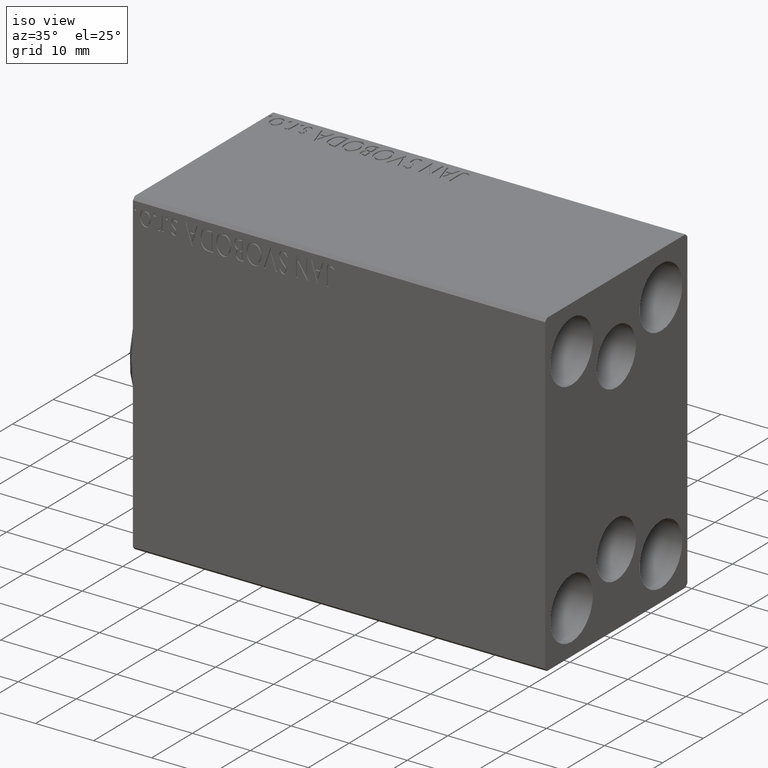
[diagram: clean part render]
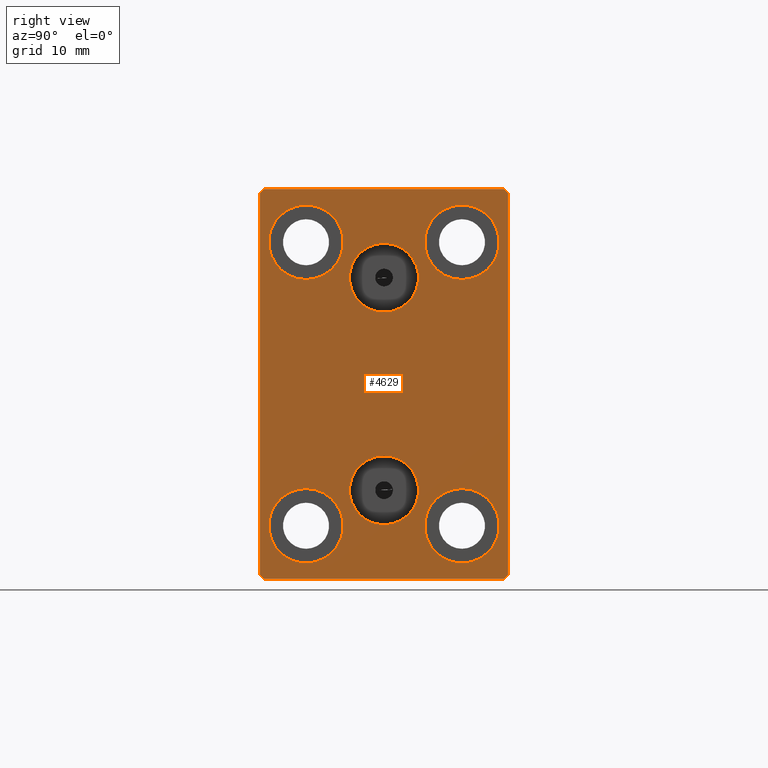
[diagram: tour spotlight — one face highlighted and labeled with its STEP entity id]
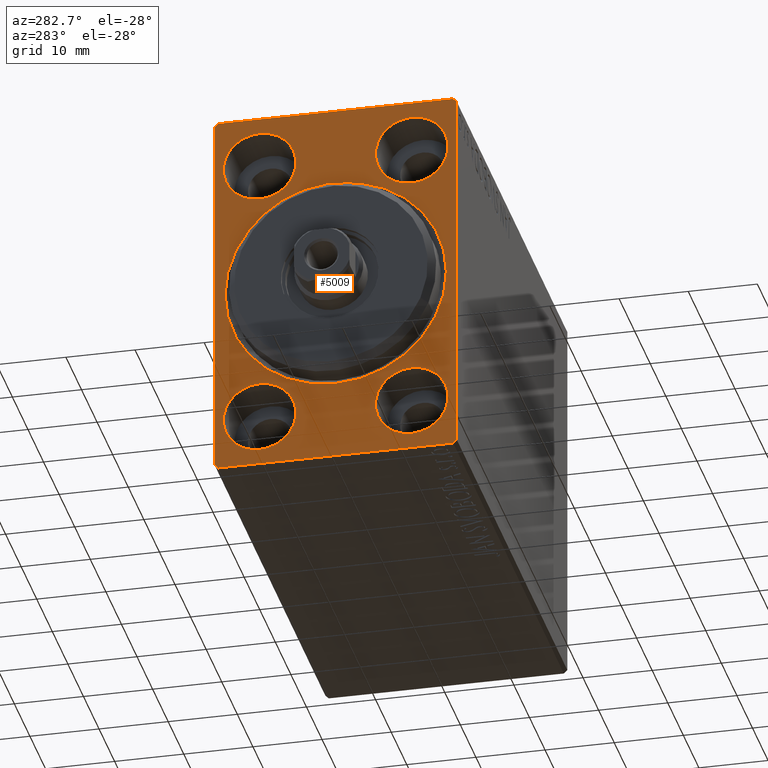
[diagram: tour spotlight — one face highlighted and labeled with its STEP entity id]
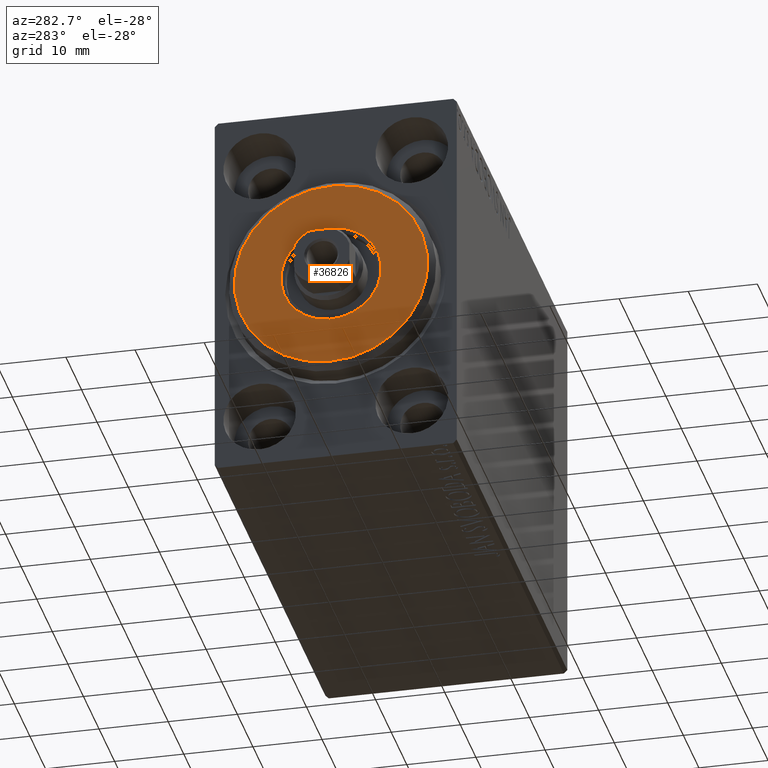
[diagram: tour spotlight — one face highlighted and labeled with its STEP entity id]
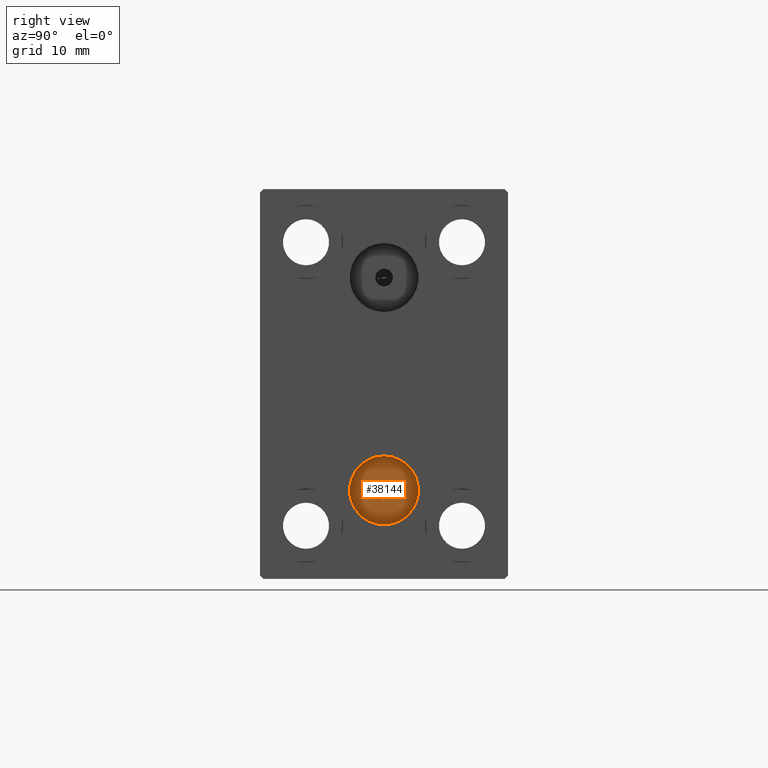
[diagram: tour spotlight — one face highlighted and labeled with its STEP entity id]
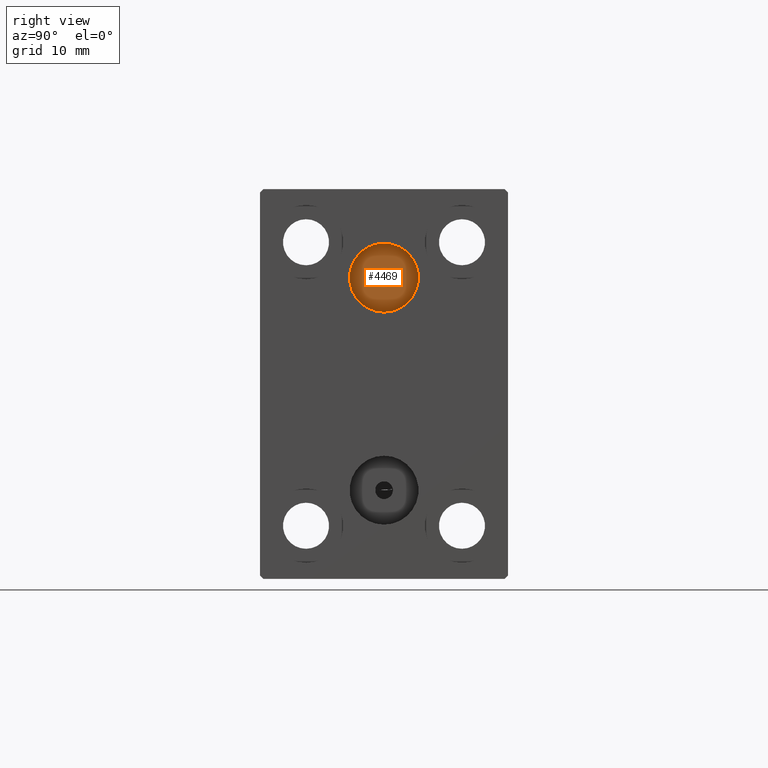
[diagram: tour spotlight — one face highlighted and labeled with its STEP entity id]
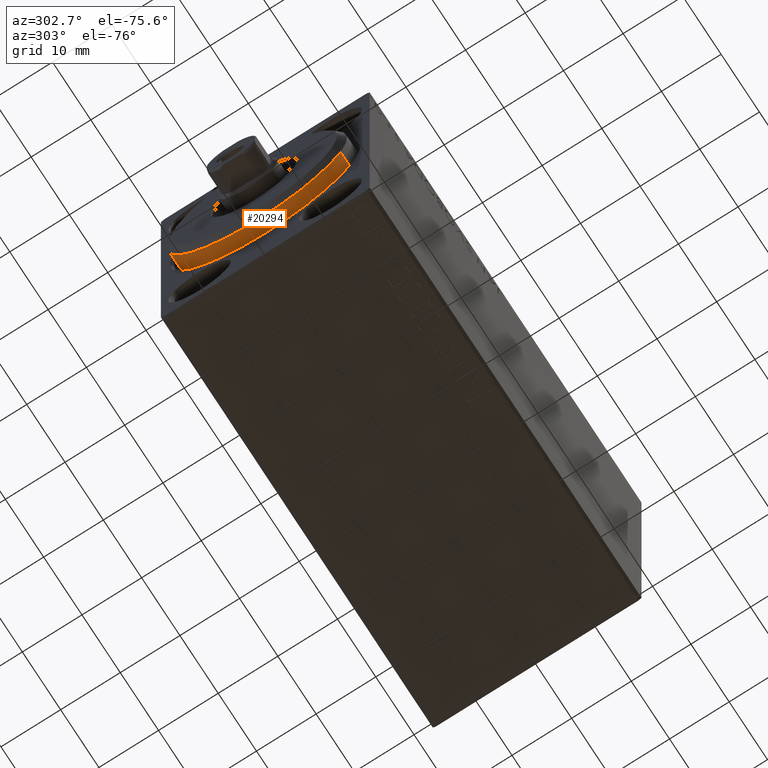
[diagram: tour spotlight — one face highlighted and labeled with its STEP entity id]
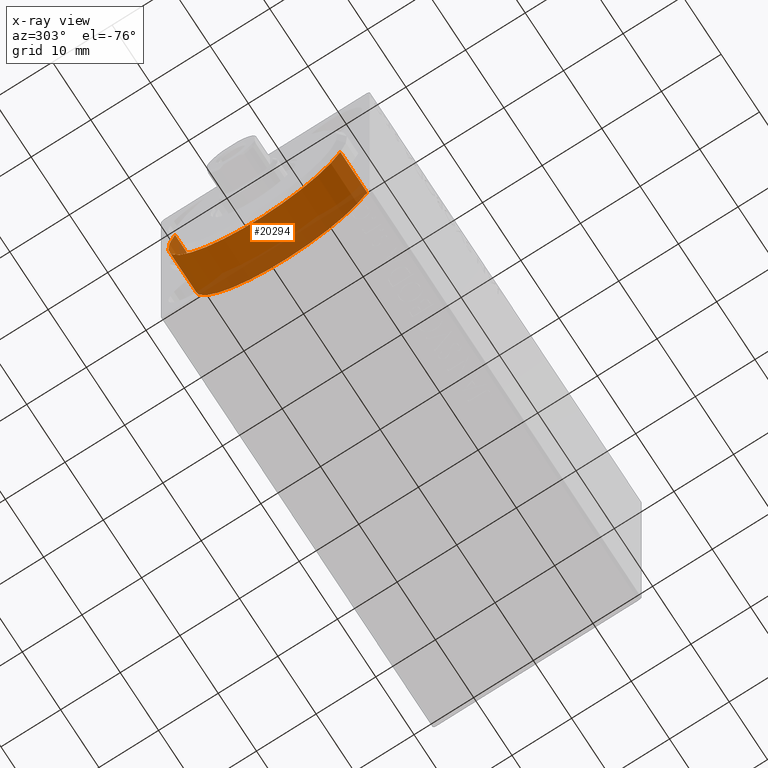
[diagram: x-ray of the same camera — body ghosted, this tour face saturated]
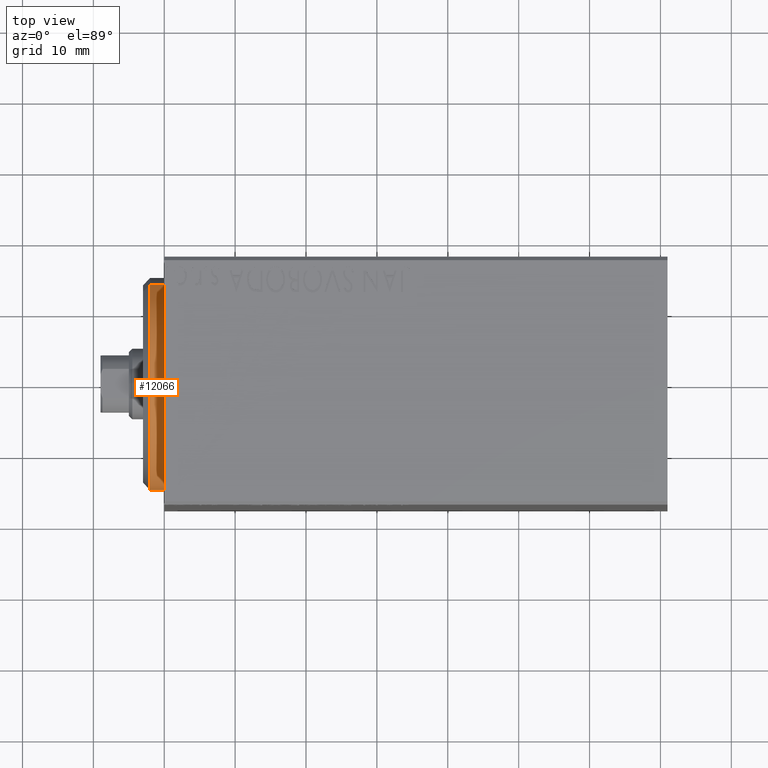
[diagram: tour spotlight — one face highlighted and labeled with its STEP entity id]
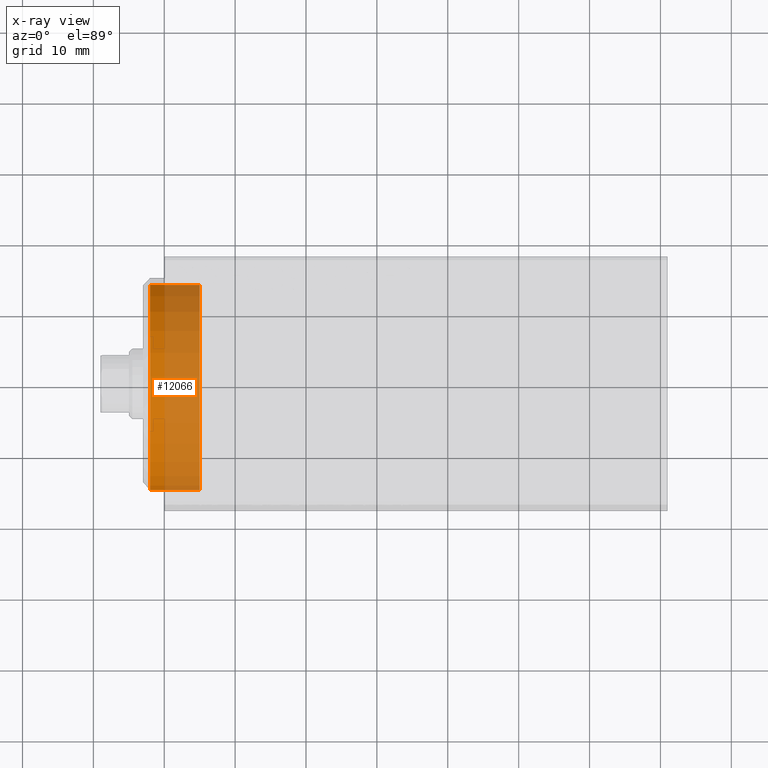
[diagram: x-ray of the same camera — body ghosted, this tour face saturated]
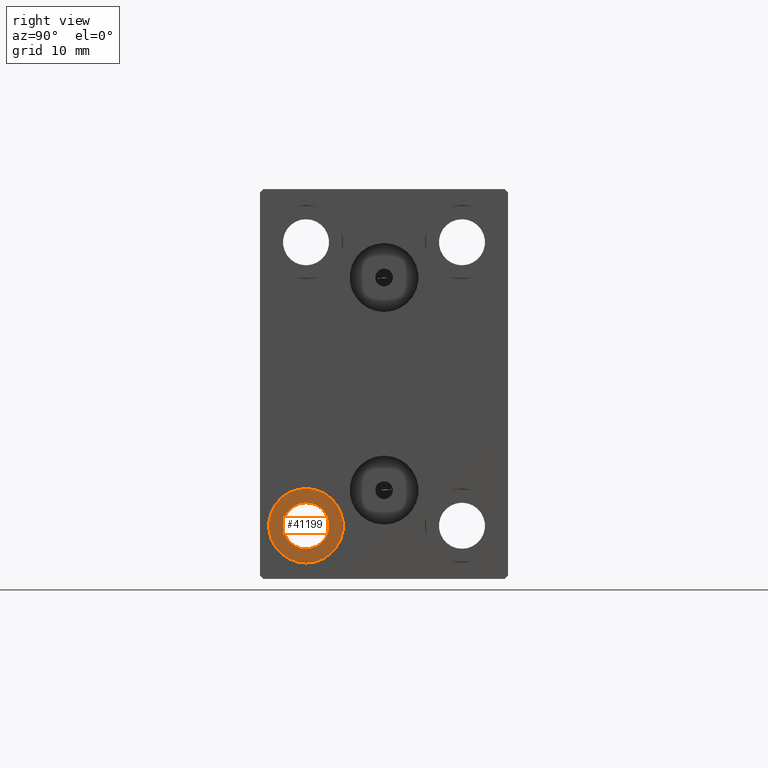
[diagram: tour spotlight — one face highlighted and labeled with its STEP entity id]
A machine part: a face-by-face anatomy tour. The part has 861 B-rep faces; the first image is the clean iso view, then the 8 largest visible faces are spotlighted one at a time (largest first), each with its STEP entity span.

Face 1 — right view, entity #4629. In plain terms, the highlighted planar face has unit normal (1, 0, 0).
Definition (entity closure, byte-faithful):
#42 = AXIS2_PLACEMENT_3D ( 'NONE', #39801, #29599, #9395 ) ;
#138 = DIRECTION ( 'NONE',  ( -0.000000000000000000, 0.7071067811865474617, -0.7071067811865474617 ) ) ;
#177 = EDGE_CURVE ( 'NONE', #5210, #34684, #37292, .T. ) ;
#526 = AXIS2_PLACEMENT_3D ( 'NONE', #13627, #41137, #17600 ) ;
#705 = EDGE_LOOP ( 'NONE', ( #2885, #31915 ) ) ;
#938 = CARTESIAN_POINT ( 'NONE',  ( 71.00000000000000000, 22.25000000000000711, -22.25000000000000711 ) ) ;
#1160 = EDGE_CURVE ( 'NONE', #3328, #18467, #30987, .T. ) ;
#1409 = FACE_BOUND ( 'NONE', #7593, .T. ) ;
#1616 = EDGE_CURVE ( 'NONE', #29288, #26653, #40920, .T. ) ;
#1697 = DIRECTION ( 'NONE',  ( 0.000000000000000000, 0.000000000000000000, 1.000000000000000000 ) ) ;
#2392 = CARTESIAN_POINT ( 'NONE',  ( 71.00000000000000000, -1.836970198721029589E-15, 15.00000000000000000 ) ) ;
#2570 = CARTESIAN_POINT ( 'NONE',  ( 71.00000000000000000, -11.00000000000000355, 14.75000000000000000 ) ) ;
#2861 = VERTEX_POINT ( 'NONE', #11549 ) ;
#2885 = ORIENTED_EDGE ( 'NONE', *, *, #21639, .T. ) ;
#3180 = EDGE_CURVE ( 'NONE', #10804, #2861, #29637, .T. ) ;
#3307 = ORIENTED_EDGE ( 'NONE', *, *, #9765, .T. ) ;
#3328 = VERTEX_POINT ( 'NONE', #16665 ) ;
#3373 = EDGE_LOOP ( 'NONE', ( #26072, #36520 ) ) ;
#3464 = CARTESIAN_POINT ( 'NONE',  ( 71.00000000000000000, -11.00000000000000355, 25.25000000000000000 ) ) ;
#3550 = AXIS2_PLACEMENT_3D ( 'NONE', #13694, #20355, #36778 ) ;
#3601 = DIRECTION ( 'NONE',  ( 0.000000000000000000, 0.000000000000000000, 1.000000000000000000 ) ) ;
#4525 = FACE_BOUND ( 'NONE', #3373, .T. ) ;
#4629 = ADVANCED_FACE ( 'NONE', ( #1409, #4525, #20962, #24940, #27631, #7850, #14292 ), #42022, .T. ) ;
#4910 = EDGE_CURVE ( 'NONE', #38464, #39010, #35345, .T. ) ;
#5210 = VERTEX_POINT ( 'NONE', #19547 ) ;
#5408 = CARTESIAN_POINT ( 'NONE',  ( 71.00000000000000000, -1.241791854335416311E-15, 19.85999999999999943 ) ) ;
#5459 = DIRECTION ( 'NONE',  ( 1.000000000000000000, 0.000000000000000000, -0.000000000000000000 ) ) ;
#5495 = VERTEX_POINT ( 'NONE', #20756 ) ;
#5526 = AXIS2_PLACEMENT_3D ( 'NONE', #16296, #36510, #29627 ) ;
#6348 = AXIS2_PLACEMENT_3D ( 'NONE', #13199, #36072, #12319 ) ;
#6525 = VECTOR ( 'NONE', #41628, 1000.000000000000000 ) ;
#6893 = VERTEX_POINT ( 'NONE', #42774 ) ;
#7155 = LINE ( 'NONE', #938, #32902 ) ;
#7164 = VERTEX_POINT ( 'NONE', #9430 ) ;
#7498 = CARTESIAN_POINT ( 'NONE',  ( 71.00000000000000000, -22.25000000000000711, 22.25000000000000711 ) ) ;
#7593 = EDGE_LOOP ( 'NONE', ( #43373, #26839 ) ) ;
#7674 = DIRECTION ( 'NONE',  ( 0.000000000000000000, 0.000000000000000000, 1.000000000000000000 ) ) ;
#7850 = FACE_BOUND ( 'NONE', #33791, .T. ) ;
#7896 = LINE ( 'NONE', #24539, #6525 ) ;
#8606 = DIRECTION ( 'NONE',  ( 0.000000000000000000, 1.000000000000000000, 0.000000000000000000 ) ) ;
#8864 = EDGE_LOOP ( 'NONE', ( #23687, #28060, #18930, #34013, #3307, #19113, #11335, #34658 ) ) ;
#8967 = ORIENTED_EDGE ( 'NONE', *, *, #39734, .T. ) ;
#9395 = DIRECTION ( 'NONE',  ( 0.000000000000000000, 0.000000000000000000, 1.000000000000000000 ) ) ;
#9430 = CARTESIAN_POINT ( 'NONE',  ( 71.00000000000000000, 17.50000000000000711, -27.00000000000000355 ) ) ;
#9520 = VECTOR ( 'NONE', #138, 1000.000000000000114 ) ;
#9765 = EDGE_CURVE ( 'NONE', #5495, #25914, #15912, .T. ) ;
#9989 = CARTESIAN_POINT ( 'NONE',  ( 71.00000000000000000, 22.25000000000000711, 22.25000000000000711 ) ) ;
#10392 = CARTESIAN_POINT ( 'NONE',  ( 71.00000000000000000, -11.00000000000000355, -20.00000000000000000 ) ) ;
#10804 = VERTEX_POINT ( 'NONE', #13481 ) ;
#10805 = CARTESIAN_POINT ( 'NONE',  ( 71.00000000000000000, -17.50000000000000000, 27.49999999999999645 ) ) ;
#11002 = AXIS2_PLACEMENT_3D ( 'NONE', #20346, #40094, #43642 ) ;
#11335 = ORIENTED_EDGE ( 'NONE', *, *, #40133, .T. ) ;
#11549 = CARTESIAN_POINT ( 'NONE',  ( 71.00000000000000000, 11.00000000000000355, 14.75000000000000000 ) ) ;
#11677 = LINE ( 'NONE', #7498, #39139 ) ;
#11754 = AXIS2_PLACEMENT_3D ( 'NONE', #2392, #33465, #16585 ) ;
#11814 = AXIS2_PLACEMENT_3D ( 'NONE', #10392, #17714, #23937 ) ;
#12238 = EDGE_CURVE ( 'NONE', #29623, #6893, #31235, .T. ) ;
#12319 = DIRECTION ( 'NONE',  ( 0.000000000000000000, 0.000000000000000000, 1.000000000000000000 ) ) ;
#12421 = CARTESIAN_POINT ( 'NONE',  ( 71.00000000000000000, -17.00000000000001421, 27.49999999999999645 ) ) ;
#12431 = VERTEX_POINT ( 'NONE', #26306 ) ;
#12436 = EDGE_CURVE ( 'NONE', #18467, #3328, #27621, .T. ) ;
#13199 = CARTESIAN_POINT ( 'NONE',  ( 71.00000000000000000, -11.00000000000000355, -20.00000000000000000 ) ) ;
#13475 = ORIENTED_EDGE ( 'NONE', *, *, #40322, .T. ) ;
#13481 = CARTESIAN_POINT ( 'NONE',  ( 71.00000000000000000, 11.00000000000000355, 25.25000000000000000 ) ) ;
#13627 = CARTESIAN_POINT ( 'NONE',  ( 71.00000000000000000, -1.836970198721029589E-15, 15.00000000000000000 ) ) ;
#13694 = CARTESIAN_POINT ( 'NONE',  ( 71.00000000000000000, 11.00000000000000355, 20.00000000000000000 ) ) ;
#13732 = CARTESIAN_POINT ( 'NONE',  ( 71.00000000000000000, 17.50000000000000711, -27.50000000000000355 ) ) ;
#14292 = FACE_OUTER_BOUND ( 'NONE', #8864, .T. ) ;
#14507 = DIRECTION ( 'NONE',  ( 1.000000000000000000, 0.000000000000000000, 0.000000000000000000 ) ) ;
#14596 = EDGE_CURVE ( 'NONE', #22617, #12431, #34776, .T. ) ;
#14765 = AXIS2_PLACEMENT_3D ( 'NONE', #34010, #37336, #3601 ) ;
#15218 = EDGE_CURVE ( 'NONE', #39010, #38464, #41860, .T. ) ;
#15863 = CARTESIAN_POINT ( 'NONE',  ( 71.00000000000000000, 11.00000000000000355, -14.75000000000000000 ) ) ;
#15912 = LINE ( 'NONE', #35479, #36057 ) ;
#16296 = CARTESIAN_POINT ( 'NONE',  ( 71.00000000000000000, 11.00000000000000355, 20.00000000000000000 ) ) ;
#16352 = EDGE_LOOP ( 'NONE', ( #13475, #36636 ) ) ;
#16585 = DIRECTION ( 'NONE',  ( 0.000000000000000000, 0.000000000000000000, -1.000000000000000000 ) ) ;
#16665 = CARTESIAN_POINT ( 'NONE',  ( 71.00000000000000000, -11.00000000000000355, -25.25000000000000000 ) ) ;
#17140 = DIRECTION ( 'NONE',  ( -0.000000000000000000, 0.7071067811865474617, 0.7071067811865474617 ) ) ;
#17600 = DIRECTION ( 'NONE',  ( 0.000000000000000000, 0.000000000000000000, -1.000000000000000000 ) ) ;
#17683 = DIRECTION ( 'NONE',  ( 0.000000000000000000, 0.000000000000000000, -1.000000000000000000 ) ) ;
#17714 = DIRECTION ( 'NONE',  ( -1.000000000000000000, -0.000000000000000000, -0.000000000000000000 ) ) ;
#18048 = ORIENTED_EDGE ( 'NONE', *, *, #1160, .T. ) ;
#18274 = CARTESIAN_POINT ( 'NONE',  ( 71.00000000000000000, 0.000000000000000000, 0.000000000000000000 ) ) ;
#18467 = VERTEX_POINT ( 'NONE', #21973 ) ;
#18930 = ORIENTED_EDGE ( 'NONE', *, *, #12238, .T. ) ;
#19113 = ORIENTED_EDGE ( 'NONE', *, *, #36545, .T. ) ;
#19413 = VERTEX_POINT ( 'NONE', #12421 ) ;
#19547 = CARTESIAN_POINT ( 'NONE',  ( 71.00000000000000000, 17.50000000000000000, 27.00000000000001776 ) ) ;
#20346 = CARTESIAN_POINT ( 'NONE',  ( 71.00000000000000000, 11.00000000000000355, -20.00000000000000000 ) ) ;
#20355 = DIRECTION ( 'NONE',  ( -1.000000000000000000, -0.000000000000000000, -0.000000000000000000 ) ) ;
#20756 = CARTESIAN_POINT ( 'NONE',  ( 71.00000000000000000, -17.00000000000000000, -27.50000000000000355 ) ) ;
#20962 = FACE_BOUND ( 'NONE', #16352, .T. ) ;
#21033 = DIRECTION ( 'NONE',  ( 0.000000000000000000, -0.7071067811865474617, -0.7071067811865474617 ) ) ;
#21639 = EDGE_CURVE ( 'NONE', #2861, #10804, #30488, .T. ) ;
#21973 = CARTESIAN_POINT ( 'NONE',  ( 71.00000000000000000, -11.00000000000000355, -14.75000000000000000 ) ) ;
#22225 = CIRCLE ( 'NONE', #42060, 5.250000000000000888 ) ;
#22617 = VERTEX_POINT ( 'NONE', #15863 ) ;
#23530 = DIRECTION ( 'NONE',  ( -0.000000000000000000, -0.7071067811865474617, 0.7071067811865474617 ) ) ;
#23687 = ORIENTED_EDGE ( 'NONE', *, *, #25692, .T. ) ;
#23937 = DIRECTION ( 'NONE',  ( 0.000000000000000000, 0.000000000000000000, 1.000000000000000000 ) ) ;
#24539 = CARTESIAN_POINT ( 'NONE',  ( 71.00000000000000000, 17.50000000000000000, 27.50000000000000355 ) ) ;
#24717 = DIRECTION ( 'NONE',  ( 0.000000000000000000, 0.000000000000000000, -1.000000000000000000 ) ) ;
#24940 = FACE_BOUND ( 'NONE', #34345, .T. ) ;
#25607 = CARTESIAN_POINT ( 'NONE',  ( 71.00000000000000000, -1.836970198721029589E-15, 10.14000000000000057 ) ) ;
#25692 = EDGE_CURVE ( 'NONE', #34684, #19413, #7896, .T. ) ;
#25914 = VERTEX_POINT ( 'NONE', #43289 ) ;
#26072 = ORIENTED_EDGE ( 'NONE', *, *, #4910, .F. ) ;
#26306 = CARTESIAN_POINT ( 'NONE',  ( 71.00000000000000000, 11.00000000000000355, -25.25000000000000000 ) ) ;
#26427 = VERTEX_POINT ( 'NONE', #2570 ) ;
#26653 = VERTEX_POINT ( 'NONE', #5408 ) ;
#26839 = ORIENTED_EDGE ( 'NONE', *, *, #42485, .F. ) ;
#27621 = CIRCLE ( 'NONE', #6348, 5.250000000000000888 ) ;
#27631 = FACE_BOUND ( 'NONE', #705, .T. ) ;
#27657 = CARTESIAN_POINT ( 'NONE',  ( 71.00000000000000000, -22.25000000000000355, -22.25000000000000355 ) ) ;
#27742 = CARTESIAN_POINT ( 'NONE',  ( 71.00000000000000000, 17.00000000000001421, 27.50000000000000355 ) ) ;
#28060 = ORIENTED_EDGE ( 'NONE', *, *, #31727, .T. ) ;
#28411 = AXIS2_PLACEMENT_3D ( 'NONE', #42952, #5459, #1697 ) ;
#29288 = VERTEX_POINT ( 'NONE', #25607 ) ;
#29599 = DIRECTION ( 'NONE',  ( -1.000000000000000000, -0.000000000000000000, -0.000000000000000000 ) ) ;
#29623 = VERTEX_POINT ( 'NONE', #36381 ) ;
#29627 = DIRECTION ( 'NONE',  ( 0.000000000000000000, 0.000000000000000000, 1.000000000000000000 ) ) ;
#29637 = CIRCLE ( 'NONE', #5526, 5.250000000000000888 ) ;
#29916 = ORIENTED_EDGE ( 'NONE', *, *, #35687, .T. ) ;
#30092 = DIRECTION ( 'NONE',  ( 0.000000000000000000, 0.000000000000000000, 1.000000000000000000 ) ) ;
#30488 = CIRCLE ( 'NONE', #3550, 5.250000000000000888 ) ;
#30914 = VERTEX_POINT ( 'NONE', #3464 ) ;
#30915 = CIRCLE ( 'NONE', #11754, 4.859999999999999432 ) ;
#30987 = CIRCLE ( 'NONE', #11814, 5.250000000000000888 ) ;
#31235 = LINE ( 'NONE', #10805, #31851 ) ;
#31473 = VECTOR ( 'NONE', #23530, 1000.000000000000114 ) ;
#31727 = EDGE_CURVE ( 'NONE', #19413, #29623, #11677, .T. ) ;
#31851 = VECTOR ( 'NONE', #17683, 1000.000000000000000 ) ;
#31915 = ORIENTED_EDGE ( 'NONE', *, *, #3180, .T. ) ;
#32902 = VECTOR ( 'NONE', #17140, 1000.000000000000114 ) ;
#32962 = CIRCLE ( 'NONE', #42157, 5.250000000000000888 ) ;
#32997 = CIRCLE ( 'NONE', #11002, 5.250000000000000888 ) ;
#33465 = DIRECTION ( 'NONE',  ( 1.000000000000000000, 0.000000000000000000, 0.000000000000000000 ) ) ;
#33791 = EDGE_LOOP ( 'NONE', ( #18048, #42740 ) ) ;
#34010 = CARTESIAN_POINT ( 'NONE',  ( 71.00000000000000000, -1.734723475976807094E-15, -15.00000000000000000 ) ) ;
#34013 = ORIENTED_EDGE ( 'NONE', *, *, #38189, .T. ) ;
#34345 = EDGE_LOOP ( 'NONE', ( #29916, #8967 ) ) ;
#34626 = AXIS2_PLACEMENT_3D ( 'NONE', #18274, #14507, #24717 ) ;
#34658 = ORIENTED_EDGE ( 'NONE', *, *, #177, .T. ) ;
#34684 = VERTEX_POINT ( 'NONE', #27742 ) ;
#34776 = CIRCLE ( 'NONE', #42, 5.250000000000000888 ) ;
#35182 = DIRECTION ( 'NONE',  ( -1.000000000000000000, -0.000000000000000000, -0.000000000000000000 ) ) ;
#35345 = CIRCLE ( 'NONE', #14765, 4.859999999999999432 ) ;
#35479 = CARTESIAN_POINT ( 'NONE',  ( 71.00000000000000000, -17.50000000000000000, -27.50000000000000355 ) ) ;
#35687 = EDGE_CURVE ( 'NONE', #26427, #30914, #22225, .T. ) ;
#36057 = VECTOR ( 'NONE', #8606, 1000.000000000000000 ) ;
#36072 = DIRECTION ( 'NONE',  ( -1.000000000000000000, -0.000000000000000000, -0.000000000000000000 ) ) ;
#36381 = CARTESIAN_POINT ( 'NONE',  ( 71.00000000000000000, -17.50000000000000000, 27.00000000000001066 ) ) ;
#36510 = DIRECTION ( 'NONE',  ( -1.000000000000000000, -0.000000000000000000, -0.000000000000000000 ) ) ;
#36520 = ORIENTED_EDGE ( 'NONE', *, *, #15218, .F. ) ;
#36523 = DIRECTION ( 'NONE',  ( -1.000000000000000000, -0.000000000000000000, -0.000000000000000000 ) ) ;
#36545 = EDGE_CURVE ( 'NONE', #25914, #7164, #7155, .T. ) ;
#36636 = ORIENTED_EDGE ( 'NONE', *, *, #14596, .T. ) ;
#36778 = DIRECTION ( 'NONE',  ( 0.000000000000000000, 0.000000000000000000, 1.000000000000000000 ) ) ;
#37292 = LINE ( 'NONE', #9989, #31473 ) ;
#37336 = DIRECTION ( 'NONE',  ( 1.000000000000000000, 0.000000000000000000, -0.000000000000000000 ) ) ;
#37524 = CARTESIAN_POINT ( 'NONE',  ( 71.00000000000000000, -1.139545131591193817E-15, -10.14000000000000057 ) ) ;
#38189 = EDGE_CURVE ( 'NONE', #6893, #5495, #40749, .T. ) ;
#38464 = VERTEX_POINT ( 'NONE', #38662 ) ;
#38662 = CARTESIAN_POINT ( 'NONE',  ( 71.00000000000000000, -1.734723475976807094E-15, -19.85999999999999943 ) ) ;
#39010 = VERTEX_POINT ( 'NONE', #37524 ) ;
#39139 = VECTOR ( 'NONE', #21033, 1000.000000000000114 ) ;
#39734 = EDGE_CURVE ( 'NONE', #30914, #26427, #32962, .T. ) ;
#39801 = CARTESIAN_POINT ( 'NONE',  ( 71.00000000000000000, 11.00000000000000355, -20.00000000000000000 ) ) ;
#40027 = VECTOR ( 'NONE', #40150, 1000.000000000000000 ) ;
#40094 = DIRECTION ( 'NONE',  ( -1.000000000000000000, -0.000000000000000000, -0.000000000000000000 ) ) ;
#40133 = EDGE_CURVE ( 'NONE', #7164, #5210, #41030, .T. ) ;
#40150 = DIRECTION ( 'NONE',  ( 0.000000000000000000, -1.261617073437677752E-16, 1.000000000000000000 ) ) ;
#40322 = EDGE_CURVE ( 'NONE', #12431, #22617, #32997, .T. ) ;
#40749 = LINE ( 'NONE', #27657, #9520 ) ;
#40920 = CIRCLE ( 'NONE', #526, 4.859999999999999432 ) ;
#41030 = LINE ( 'NONE', #13732, #40027 ) ;
#41137 = DIRECTION ( 'NONE',  ( 1.000000000000000000, 0.000000000000000000, 0.000000000000000000 ) ) ;
#41619 = CARTESIAN_POINT ( 'NONE',  ( 71.00000000000000000, -11.00000000000000355, 20.00000000000000000 ) ) ;
#41628 = DIRECTION ( 'NONE',  ( 0.000000000000000000, -1.000000000000000000, -1.982541115402065110E-16 ) ) ;
#41860 = CIRCLE ( 'NONE', #28411, 4.859999999999999432 ) ;
#42022 = PLANE ( 'NONE',  #34626 ) ;
#42060 = AXIS2_PLACEMENT_3D ( 'NONE', #42947, #36523, #30092 ) ;
#42157 = AXIS2_PLACEMENT_3D ( 'NONE', #41619, #35182, #7674 ) ;
#42485 = EDGE_CURVE ( 'NONE', #26653, #29288, #30915, .T. ) ;
#42740 = ORIENTED_EDGE ( 'NONE', *, *, #12436, .T. ) ;
#42774 = CARTESIAN_POINT ( 'NONE',  ( 71.00000000000000000, -17.50000000000000000, -27.00000000000000355 ) ) ;
#42947 = CARTESIAN_POINT ( 'NONE',  ( 71.00000000000000000, -11.00000000000000355, 20.00000000000000000 ) ) ;
#42952 = CARTESIAN_POINT ( 'NONE',  ( 71.00000000000000000, -1.734723475976807094E-15, -15.00000000000000000 ) ) ;
#43289 = CARTESIAN_POINT ( 'NONE',  ( 71.00000000000000000, 17.00000000000000711, -27.50000000000000355 ) ) ;
#43373 = ORIENTED_EDGE ( 'NONE', *, *, #1616, .F. ) ;
#43642 = DIRECTION ( 'NONE',  ( 0.000000000000000000, 0.000000000000000000, 1.000000000000000000 ) ) ;

Face 2 — auxiliary view, entity #5009. In plain terms, the highlighted planar face has unit normal (1, 0, 0).
Definition (entity closure, byte-faithful):
#422 = ORIENTED_EDGE ( 'NONE', *, *, #29012, .F. ) ;
#592 = CIRCLE ( 'NONE', #43118, 5.250000000000000888 ) ;
#708 = DIRECTION ( 'NONE',  ( 1.000000000000000000, 0.000000000000000000, 0.000000000000000000 ) ) ;
#933 = DIRECTION ( 'NONE',  ( 0.000000000000000000, 0.000000000000000000, -1.000000000000000000 ) ) ;
#962 = LINE ( 'NONE', #14490, #21781 ) ;
#1058 = EDGE_CURVE ( 'NONE', #20521, #42457, #27443, .T. ) ;
#1103 = CARTESIAN_POINT ( 'NONE',  ( 0.000000000000000000, -11.00000000000000355, 20.00000000000000000 ) ) ;
#1165 = CARTESIAN_POINT ( 'NONE',  ( 0.000000000000000000, 11.00000000000000355, -25.25000000000000000 ) ) ;
#1765 = EDGE_CURVE ( 'NONE', #32847, #28816, #962, .T. ) ;
#2000 = ORIENTED_EDGE ( 'NONE', *, *, #26882, .F. ) ;
#2070 = CARTESIAN_POINT ( 'NONE',  ( 0.000000000000000000, 17.00000000000001421, 27.50000000000000355 ) ) ;
#2166 = LINE ( 'NONE', #42988, #9154 ) ;
#2498 = VERTEX_POINT ( 'NONE', #33828 ) ;
#3565 = EDGE_CURVE ( 'NONE', #31435, #28816, #10083, .T. ) ;
#3699 = VERTEX_POINT ( 'NONE', #18055 ) ;
#3996 = DIRECTION ( 'NONE',  ( -0.000000000000000000, -0.7071067811865474617, 0.7071067811865474617 ) ) ;
#4381 = CARTESIAN_POINT ( 'NONE',  ( 0.000000000000000000, 11.00000000000000355, -20.00000000000000000 ) ) ;
#4633 = EDGE_CURVE ( 'NONE', #42457, #20521, #592, .T. ) ;
#4873 = ORIENTED_EDGE ( 'NONE', *, *, #32926, .T. ) ;
#4890 = AXIS2_PLACEMENT_3D ( 'NONE', #28714, #8289, #5181 ) ;
#5009 = ADVANCED_FACE ( 'NONE', ( #24668, #7371, #41540, #31117, #31343, #34451 ), #37998, .F. ) ;
#5181 = DIRECTION ( 'NONE',  ( 0.000000000000000000, 0.000000000000000000, -1.000000000000000000 ) ) ;
#5320 = DIRECTION ( 'NONE',  ( 0.000000000000000000, 1.000000000000000000, 0.000000000000000000 ) ) ;
#5755 = AXIS2_PLACEMENT_3D ( 'NONE', #37429, #27881, #41192 ) ;
#5993 = VERTEX_POINT ( 'NONE', #32873 ) ;
#6164 = EDGE_CURVE ( 'NONE', #32847, #21879, #31076, .T. ) ;
#6548 = CARTESIAN_POINT ( 'NONE',  ( 0.000000000000000000, -17.50000000000000000, -27.00000000000000355 ) ) ;
#6843 = EDGE_CURVE ( 'NONE', #18450, #2498, #2166, .T. ) ;
#6929 = VERTEX_POINT ( 'NONE', #10144 ) ;
#7271 = EDGE_CURVE ( 'NONE', #23758, #2498, #23634, .T. ) ;
#7371 = FACE_BOUND ( 'NONE', #7696, .T. ) ;
#7419 = ORIENTED_EDGE ( 'NONE', *, *, #11268, .T. ) ;
#7590 = CARTESIAN_POINT ( 'NONE',  ( 0.000000000000000000, 0.000000000000000000, 0.000000000000000000 ) ) ;
#7696 = EDGE_LOOP ( 'NONE', ( #17184, #35841 ) ) ;
#7917 = CIRCLE ( 'NONE', #5755, 5.250000000000000888 ) ;
#8277 = AXIS2_PLACEMENT_3D ( 'NONE', #29293, #42381, #25518 ) ;
#8289 = DIRECTION ( 'NONE',  ( 1.000000000000000000, 0.000000000000000000, 0.000000000000000000 ) ) ;
#8464 = CIRCLE ( 'NONE', #19821, 5.250000000000000888 ) ;
#8819 = EDGE_CURVE ( 'NONE', #5993, #16412, #26921, .T. ) ;
#9154 = VECTOR ( 'NONE', #36563, 1000.000000000000114 ) ;
#9922 = CIRCLE ( 'NONE', #12034, 5.250000000000000888 ) ;
#10083 = LINE ( 'NONE', #16954, #33890 ) ;
#10144 = CARTESIAN_POINT ( 'NONE',  ( 0.000000000000000000, 0.000000000000000000, 16.00000000000000000 ) ) ;
#10447 = VERTEX_POINT ( 'NONE', #41053 ) ;
#10590 = DIRECTION ( 'NONE',  ( -1.000000000000000000, 0.000000000000000000, 0.000000000000000000 ) ) ;
#11268 = EDGE_CURVE ( 'NONE', #6929, #10447, #24029, .T. ) ;
#11695 = CARTESIAN_POINT ( 'NONE',  ( 0.000000000000000000, 17.00000000000001421, 27.50000000000000355 ) ) ;
#11912 = LINE ( 'NONE', #28369, #29882 ) ;
#12034 = AXIS2_PLACEMENT_3D ( 'NONE', #4381, #10590, #28125 ) ;
#12885 = CIRCLE ( 'NONE', #18558, 5.250000000000000888 ) ;
#12934 = EDGE_CURVE ( 'NONE', #29141, #27170, #8464, .T. ) ;
#12944 = CARTESIAN_POINT ( 'NONE',  ( 0.000000000000000000, 0.000000000000000000, 0.000000000000000000 ) ) ;
#12961 = ORIENTED_EDGE ( 'NONE', *, *, #6843, .T. ) ;
#13181 = EDGE_CURVE ( 'NONE', #16412, #5993, #9922, .T. ) ;
#13417 = CARTESIAN_POINT ( 'NONE',  ( 0.000000000000000000, 17.50000000000000000, 27.50000000000000355 ) ) ;
#13584 = EDGE_CURVE ( 'NONE', #23758, #35194, #38492, .T. ) ;
#13756 = ORIENTED_EDGE ( 'NONE', *, *, #13584, .T. ) ;
#13864 = ORIENTED_EDGE ( 'NONE', *, *, #4633, .F. ) ;
#14490 = CARTESIAN_POINT ( 'NONE',  ( 0.000000000000000000, -17.50000000000000000, -27.50000000000000355 ) ) ;
#14635 = CARTESIAN_POINT ( 'NONE',  ( 0.000000000000000000, 11.00000000000000355, -20.00000000000000000 ) ) ;
#14871 = CARTESIAN_POINT ( 'NONE',  ( 0.000000000000000000, -17.50000000000000000, 27.00000000000001066 ) ) ;
#14939 = DIRECTION ( 'NONE',  ( -1.000000000000000000, 0.000000000000000000, 0.000000000000000000 ) ) ;
#15882 = CARTESIAN_POINT ( 'NONE',  ( 0.000000000000000000, -11.00000000000000355, 20.00000000000000000 ) ) ;
#15919 = CARTESIAN_POINT ( 'NONE',  ( 0.000000000000000000, -11.00000000000000355, -14.75000000000000000 ) ) ;
#16030 = ORIENTED_EDGE ( 'NONE', *, *, #6164, .T. ) ;
#16061 = EDGE_LOOP ( 'NONE', ( #2000, #24610 ) ) ;
#16412 = VERTEX_POINT ( 'NONE', #1165 ) ;
#16954 = CARTESIAN_POINT ( 'NONE',  ( 0.000000000000000000, 17.50000000000000711, -27.00000000000000355 ) ) ;
#16983 = CARTESIAN_POINT ( 'NONE',  ( 0.000000000000000000, -11.00000000000000355, 14.75000000000000000 ) ) ;
#17158 = DIRECTION ( 'NONE',  ( 0.000000000000000000, 0.000000000000000000, -1.000000000000000000 ) ) ;
#17184 = ORIENTED_EDGE ( 'NONE', *, *, #8819, .F. ) ;
#17185 = ORIENTED_EDGE ( 'NONE', *, *, #24648, .F. ) ;
#17977 = DIRECTION ( 'NONE',  ( -1.000000000000000000, 0.000000000000000000, 0.000000000000000000 ) ) ;
#18055 = CARTESIAN_POINT ( 'NONE',  ( 0.000000000000000000, 11.00000000000000355, 25.25000000000000000 ) ) ;
#18062 = DIRECTION ( 'NONE',  ( 0.000000000000000000, 0.000000000000000000, 1.000000000000000000 ) ) ;
#18134 = DIRECTION ( 'NONE',  ( 0.000000000000000000, -1.261617073437677752E-16, 1.000000000000000000 ) ) ;
#18367 = DIRECTION ( 'NONE',  ( 0.000000000000000000, 0.000000000000000000, -1.000000000000000000 ) ) ;
#18450 = VERTEX_POINT ( 'NONE', #14871 ) ;
#18558 = AXIS2_PLACEMENT_3D ( 'NONE', #43019, #33711, #33045 ) ;
#18999 = DIRECTION ( 'NONE',  ( 0.000000000000000000, 0.000000000000000000, 1.000000000000000000 ) ) ;
#19053 = VECTOR ( 'NONE', #3996, 1000.000000000000114 ) ;
#19821 = AXIS2_PLACEMENT_3D ( 'NONE', #1103, #20645, #25064 ) ;
#20521 = VERTEX_POINT ( 'NONE', #32845 ) ;
#20620 = ORIENTED_EDGE ( 'NONE', *, *, #1058, .F. ) ;
#20645 = DIRECTION ( 'NONE',  ( -1.000000000000000000, 0.000000000000000000, 0.000000000000000000 ) ) ;
#21218 = VECTOR ( 'NONE', #40725, 1000.000000000000000 ) ;
#21444 = CIRCLE ( 'NONE', #37763, 16.00000000000000000 ) ;
#21781 = VECTOR ( 'NONE', #5320, 1000.000000000000000 ) ;
#21879 = VERTEX_POINT ( 'NONE', #6548 ) ;
#22428 = CARTESIAN_POINT ( 'NONE',  ( 0.000000000000000000, 17.50000000000000000, 27.00000000000001776 ) ) ;
#22441 = VERTEX_POINT ( 'NONE', #34127 ) ;
#22588 = CARTESIAN_POINT ( 'NONE',  ( 0.000000000000000000, 17.50000000000000711, -27.00000000000000355 ) ) ;
#23623 = DIRECTION ( 'NONE',  ( 0.000000000000000000, -0.7071067811865474617, -0.7071067811865474617 ) ) ;
#23634 = LINE ( 'NONE', #13417, #21218 ) ;
#23758 = VERTEX_POINT ( 'NONE', #11695 ) ;
#24029 = CIRCLE ( 'NONE', #4890, 16.00000000000000000 ) ;
#24610 = ORIENTED_EDGE ( 'NONE', *, *, #24977, .F. ) ;
#24648 = EDGE_CURVE ( 'NONE', #18450, #21879, #11912, .T. ) ;
#24668 = FACE_BOUND ( 'NONE', #42129, .T. ) ;
#24934 = ORIENTED_EDGE ( 'NONE', *, *, #3565, .T. ) ;
#24977 = EDGE_CURVE ( 'NONE', #22441, #3699, #7917, .T. ) ;
#25020 = CARTESIAN_POINT ( 'NONE',  ( 0.000000000000000000, 17.00000000000000711, -27.50000000000000355 ) ) ;
#25064 = DIRECTION ( 'NONE',  ( 0.000000000000000000, 0.000000000000000000, 1.000000000000000000 ) ) ;
#25435 = CARTESIAN_POINT ( 'NONE',  ( 0.000000000000000000, 17.50000000000000711, -27.50000000000000355 ) ) ;
#25476 = EDGE_LOOP ( 'NONE', ( #13864, #20620 ) ) ;
#25516 = VECTOR ( 'NONE', #35818, 1000.000000000000114 ) ;
#25518 = DIRECTION ( 'NONE',  ( 0.000000000000000000, 0.000000000000000000, 1.000000000000000000 ) ) ;
#26107 = CARTESIAN_POINT ( 'NONE',  ( 0.000000000000000000, -11.00000000000000355, 25.25000000000000000 ) ) ;
#26181 = ORIENTED_EDGE ( 'NONE', *, *, #12934, .F. ) ;
#26882 = EDGE_CURVE ( 'NONE', #3699, #22441, #12885, .T. ) ;
#26921 = CIRCLE ( 'NONE', #31165, 5.250000000000000888 ) ;
#27170 = VERTEX_POINT ( 'NONE', #26107 ) ;
#27401 = VECTOR ( 'NONE', #18134, 1000.000000000000000 ) ;
#27443 = CIRCLE ( 'NONE', #8277, 5.250000000000000888 ) ;
#27764 = CIRCLE ( 'NONE', #32686, 5.250000000000000888 ) ;
#27881 = DIRECTION ( 'NONE',  ( -1.000000000000000000, 0.000000000000000000, 0.000000000000000000 ) ) ;
#28125 = DIRECTION ( 'NONE',  ( 0.000000000000000000, 0.000000000000000000, 1.000000000000000000 ) ) ;
#28369 = CARTESIAN_POINT ( 'NONE',  ( 0.000000000000000000, -17.50000000000000000, 27.49999999999999645 ) ) ;
#28371 = ORIENTED_EDGE ( 'NONE', *, *, #43491, .F. ) ;
#28714 = CARTESIAN_POINT ( 'NONE',  ( 0.000000000000000000, 0.000000000000000000, 0.000000000000000000 ) ) ;
#28816 = VERTEX_POINT ( 'NONE', #25020 ) ;
#29012 = EDGE_CURVE ( 'NONE', #27170, #29141, #27764, .T. ) ;
#29141 = VERTEX_POINT ( 'NONE', #16983 ) ;
#29293 = CARTESIAN_POINT ( 'NONE',  ( 0.000000000000000000, -11.00000000000000355, -20.00000000000000000 ) ) ;
#29825 = DIRECTION ( 'NONE',  ( 1.000000000000000000, 0.000000000000000000, 0.000000000000000000 ) ) ;
#29882 = VECTOR ( 'NONE', #18367, 1000.000000000000000 ) ;
#30127 = EDGE_LOOP ( 'NONE', ( #17185, #12961, #43157, #13756, #28371, #24934, #35137, #16030 ) ) ;
#30322 = DIRECTION ( 'NONE',  ( 0.000000000000000000, 0.000000000000000000, 1.000000000000000000 ) ) ;
#31076 = LINE ( 'NONE', #38605, #19053 ) ;
#31117 = FACE_BOUND ( 'NONE', #16061, .T. ) ;
#31165 = AXIS2_PLACEMENT_3D ( 'NONE', #14635, #17977, #18999 ) ;
#31343 = FACE_BOUND ( 'NONE', #25476, .T. ) ;
#31435 = VERTEX_POINT ( 'NONE', #22588 ) ;
#32686 = AXIS2_PLACEMENT_3D ( 'NONE', #15882, #42957, #30322 ) ;
#32845 = CARTESIAN_POINT ( 'NONE',  ( 0.000000000000000000, -11.00000000000000355, -25.25000000000000000 ) ) ;
#32847 = VERTEX_POINT ( 'NONE', #35826 ) ;
#32873 = CARTESIAN_POINT ( 'NONE',  ( 0.000000000000000000, 11.00000000000000355, -14.75000000000000000 ) ) ;
#32926 = EDGE_CURVE ( 'NONE', #10447, #6929, #21444, .T. ) ;
#33045 = DIRECTION ( 'NONE',  ( 0.000000000000000000, 0.000000000000000000, 1.000000000000000000 ) ) ;
#33711 = DIRECTION ( 'NONE',  ( -1.000000000000000000, 0.000000000000000000, 0.000000000000000000 ) ) ;
#33828 = CARTESIAN_POINT ( 'NONE',  ( 0.000000000000000000, -17.00000000000001421, 27.49999999999999645 ) ) ;
#33890 = VECTOR ( 'NONE', #23623, 1000.000000000000114 ) ;
#34127 = CARTESIAN_POINT ( 'NONE',  ( 0.000000000000000000, 11.00000000000000355, 14.75000000000000000 ) ) ;
#34451 = FACE_OUTER_BOUND ( 'NONE', #30127, .T. ) ;
#34936 = CARTESIAN_POINT ( 'NONE',  ( 0.000000000000000000, -11.00000000000000355, -20.00000000000000000 ) ) ;
#35137 = ORIENTED_EDGE ( 'NONE', *, *, #1765, .F. ) ;
#35194 = VERTEX_POINT ( 'NONE', #22428 ) ;
#35818 = DIRECTION ( 'NONE',  ( -0.000000000000000000, 0.7071067811865474617, -0.7071067811865474617 ) ) ;
#35826 = CARTESIAN_POINT ( 'NONE',  ( 0.000000000000000000, -17.00000000000000000, -27.50000000000000355 ) ) ;
#35841 = ORIENTED_EDGE ( 'NONE', *, *, #13181, .F. ) ;
#36563 = DIRECTION ( 'NONE',  ( -0.000000000000000000, 0.7071067811865474617, 0.7071067811865474617 ) ) ;
#37429 = CARTESIAN_POINT ( 'NONE',  ( 0.000000000000000000, 11.00000000000000355, 20.00000000000000000 ) ) ;
#37763 = AXIS2_PLACEMENT_3D ( 'NONE', #12944, #29825, #17158 ) ;
#37998 = PLANE ( 'NONE',  #41712 ) ;
#38492 = LINE ( 'NONE', #2070, #25516 ) ;
#38605 = CARTESIAN_POINT ( 'NONE',  ( 0.000000000000000000, -17.00000000000000000, -27.50000000000000355 ) ) ;
#40137 = EDGE_LOOP ( 'NONE', ( #422, #26181 ) ) ;
#40725 = DIRECTION ( 'NONE',  ( 0.000000000000000000, -1.000000000000000000, -1.982541115402065110E-16 ) ) ;
#41053 = CARTESIAN_POINT ( 'NONE',  ( 0.000000000000000000, 1.959434878635765131E-15, -16.00000000000000000 ) ) ;
#41192 = DIRECTION ( 'NONE',  ( 0.000000000000000000, 0.000000000000000000, 1.000000000000000000 ) ) ;
#41540 = FACE_BOUND ( 'NONE', #40137, .T. ) ;
#41712 = AXIS2_PLACEMENT_3D ( 'NONE', #7590, #708, #933 ) ;
#42096 = LINE ( 'NONE', #25435, #27401 ) ;
#42129 = EDGE_LOOP ( 'NONE', ( #7419, #4873 ) ) ;
#42381 = DIRECTION ( 'NONE',  ( -1.000000000000000000, 0.000000000000000000, 0.000000000000000000 ) ) ;
#42457 = VERTEX_POINT ( 'NONE', #15919 ) ;
#42957 = DIRECTION ( 'NONE',  ( -1.000000000000000000, 0.000000000000000000, 0.000000000000000000 ) ) ;
#42988 = CARTESIAN_POINT ( 'NONE',  ( 0.000000000000000000, -17.50000000000000000, 27.00000000000001066 ) ) ;
#43019 = CARTESIAN_POINT ( 'NONE',  ( 0.000000000000000000, 11.00000000000000355, 20.00000000000000000 ) ) ;
#43118 = AXIS2_PLACEMENT_3D ( 'NONE', #34936, #14939, #18062 ) ;
#43157 = ORIENTED_EDGE ( 'NONE', *, *, #7271, .F. ) ;
#43491 = EDGE_CURVE ( 'NONE', #31435, #35194, #42096, .T. ) ;

Face 3 — auxiliary view, entity #36826. In plain terms, the highlighted planar face has unit normal (-1, 0, 0).
Definition (entity closure, byte-faithful):
#836 = EDGE_CURVE ( 'NONE', #7526, #42990, #29549, .T. ) ;
#1089 = VERTEX_POINT ( 'NONE', #12616 ) ;
#1578 = AXIS2_PLACEMENT_3D ( 'NONE', #33498, #16615, #37046 ) ;
#3277 = ORIENTED_EDGE ( 'NONE', *, *, #8928, .T. ) ;
#3721 = DIRECTION ( 'NONE',  ( 0.000000000000000000, 0.000000000000000000, -1.000000000000000000 ) ) ;
#3824 = AXIS2_PLACEMENT_3D ( 'NONE', #4652, #27969, #4436 ) ;
#4197 = VERTEX_POINT ( 'NONE', #43868 ) ;
#4436 = DIRECTION ( 'NONE',  ( 0.000000000000000000, 0.000000000000000000, -1.000000000000000000 ) ) ;
#4652 = CARTESIAN_POINT ( 'NONE',  ( 3.000000000000000000, 0.000000000000000000, 0.000000000000000000 ) ) ;
#4879 = ORIENTED_EDGE ( 'NONE', *, *, #836, .F. ) ;
#5084 = PLANE ( 'NONE',  #3824 ) ;
#5618 = DIRECTION ( 'NONE',  ( 0.000000000000000000, 0.000000000000000000, -1.000000000000000000 ) ) ;
#5678 = DIRECTION ( 'NONE',  ( 1.000000000000000000, -0.000000000000000000, 0.000000000000000000 ) ) ;
#7526 = VERTEX_POINT ( 'NONE', #30414 ) ;
#8406 = FACE_OUTER_BOUND ( 'NONE', #29186, .T. ) ;
#8732 = DIRECTION ( 'NONE',  ( 1.000000000000000000, 0.000000000000000000, 0.000000000000000000 ) ) ;
#8928 = EDGE_CURVE ( 'NONE', #4197, #1089, #41799, .T. ) ;
#12532 = ORIENTED_EDGE ( 'NONE', *, *, #28269, .F. ) ;
#12616 = CARTESIAN_POINT ( 'NONE',  ( 3.000000000000000000, 1.775737858763662015E-15, -13.99999999999999645 ) ) ;
#15554 = AXIS2_PLACEMENT_3D ( 'NONE', #39409, #5678, #32979 ) ;
#16615 = DIRECTION ( 'NONE',  ( 1.000000000000000000, 0.000000000000000000, 0.000000000000000000 ) ) ;
#18921 = AXIS2_PLACEMENT_3D ( 'NONE', #39566, #8732, #5618 ) ;
#23473 = DIRECTION ( 'NONE',  ( 1.000000000000000000, -0.000000000000000000, 0.000000000000000000 ) ) ;
#26390 = CIRCLE ( 'NONE', #1578, 7.249999999999999112 ) ;
#27969 = DIRECTION ( 'NONE',  ( 1.000000000000000000, -0.000000000000000000, 0.000000000000000000 ) ) ;
#28269 = EDGE_CURVE ( 'NONE', #42990, #7526, #26390, .T. ) ;
#28617 = FACE_BOUND ( 'NONE', #38901, .T. ) ;
#29186 = EDGE_LOOP ( 'NONE', ( #3277, #32150 ) ) ;
#29549 = CIRCLE ( 'NONE', #18921, 7.249999999999999112 ) ;
#30414 = CARTESIAN_POINT ( 'NONE',  ( 3.000000000000000000, 8.878689293818310074E-16, 7.249999999999999112 ) ) ;
#32150 = ORIENTED_EDGE ( 'NONE', *, *, #36238, .T. ) ;
#32979 = DIRECTION ( 'NONE',  ( 0.000000000000000000, 0.000000000000000000, -1.000000000000000000 ) ) ;
#33498 = CARTESIAN_POINT ( 'NONE',  ( 3.000000000000000000, 0.000000000000000000, 0.000000000000000000 ) ) ;
#36238 = EDGE_CURVE ( 'NONE', #1089, #4197, #40674, .T. ) ;
#36826 = ADVANCED_FACE ( 'NONE', ( #8406, #28617 ), #5084, .T. ) ;
#37046 = DIRECTION ( 'NONE',  ( 0.000000000000000000, 0.000000000000000000, -1.000000000000000000 ) ) ;
#37125 = AXIS2_PLACEMENT_3D ( 'NONE', #40782, #23473, #3721 ) ;
#38901 = EDGE_LOOP ( 'NONE', ( #12532, #4879 ) ) ;
#39409 = CARTESIAN_POINT ( 'NONE',  ( 3.000000000000000000, 0.000000000000000000, 0.000000000000000000 ) ) ;
#39566 = CARTESIAN_POINT ( 'NONE',  ( 3.000000000000000000, 0.000000000000000000, 0.000000000000000000 ) ) ;
#40674 = CIRCLE ( 'NONE', #37125, 13.99999999999999645 ) ;
#40782 = CARTESIAN_POINT ( 'NONE',  ( 3.000000000000000000, 0.000000000000000000, 0.000000000000000000 ) ) ;
#41799 = CIRCLE ( 'NONE', #15554, 13.99999999999999645 ) ;
#42990 = VERTEX_POINT ( 'NONE', #43510 ) ;
#43510 = CARTESIAN_POINT ( 'NONE',  ( 3.000000000000000000, 0.000000000000000000, -7.249999999999999112 ) ) ;
#43868 = CARTESIAN_POINT ( 'NONE',  ( 3.000000000000000000, 0.000000000000000000, 13.99999999999999645 ) ) ;

Face 4 — right view, entity #38144. In plain terms, the highlighted planar face has unit normal (-1, 0, 0).
Definition (entity closure, byte-faithful):
#357 = DIRECTION ( 'NONE',  ( -1.000000000000000000, -0.000000000000000000, 0.000000000000000000 ) ) ;
#433 = VERTEX_POINT ( 'NONE', #37022 ) ;
#4274 = CARTESIAN_POINT ( 'NONE',  ( 60.99999999999999289, -1.836970198721029589E-15, -15.00000000000000000 ) ) ;
#4973 = CARTESIAN_POINT ( 'NONE',  ( 60.99999999999999289, -1.836970198721029589E-15, -15.00000000000000000 ) ) ;
#7833 = CIRCLE ( 'NONE', #39739, 1.250000000000001110 ) ;
#9599 = VERTEX_POINT ( 'NONE', #43046 ) ;
#9895 = CARTESIAN_POINT ( 'NONE',  ( 60.99999999999999289, -1.734723475976807094E-15, -15.00000000000000000 ) ) ;
#10336 = FACE_BOUND ( 'NONE', #28544, .T. ) ;
#10913 = ORIENTED_EDGE ( 'NONE', *, *, #39124, .T. ) ;
#11647 = ORIENTED_EDGE ( 'NONE', *, *, #14677, .F. ) ;
#11731 = AXIS2_PLACEMENT_3D ( 'NONE', #33290, #13086, #26632 ) ;
#13086 = DIRECTION ( 'NONE',  ( 1.000000000000000000, 0.000000000000000000, -0.000000000000000000 ) ) ;
#14100 = PLANE ( 'NONE',  #37891 ) ;
#14470 = VERTEX_POINT ( 'NONE', #28728 ) ;
#14677 = EDGE_CURVE ( 'NONE', #433, #14470, #7833, .T. ) ;
#15524 = EDGE_CURVE ( 'NONE', #14470, #433, #29122, .T. ) ;
#15974 = CIRCLE ( 'NONE', #11731, 4.859999999999999432 ) ;
#18509 = AXIS2_PLACEMENT_3D ( 'NONE', #4973, #18511, #38915 ) ;
#18511 = DIRECTION ( 'NONE',  ( 1.000000000000000000, 0.000000000000000000, 0.000000000000000000 ) ) ;
#19895 = DIRECTION ( 'NONE',  ( 0.000000000000000000, 0.000000000000000000, 1.000000000000000000 ) ) ;
#20943 = CARTESIAN_POINT ( 'NONE',  ( 60.99999999999999289, -1.734723475976807094E-15, -19.85999999999999943 ) ) ;
#23893 = ORIENTED_EDGE ( 'NONE', *, *, #41405, .T. ) ;
#24035 = DIRECTION ( 'NONE',  ( 0.000000000000000000, 0.000000000000000000, -1.000000000000000000 ) ) ;
#24093 = FACE_OUTER_BOUND ( 'NONE', #35842, .T. ) ;
#25292 = DIRECTION ( 'NONE',  ( 0.000000000000000000, 0.000000000000000000, 1.000000000000000000 ) ) ;
#26568 = CIRCLE ( 'NONE', #36487, 4.859999999999999432 ) ;
#26632 = DIRECTION ( 'NONE',  ( 0.000000000000000000, 0.000000000000000000, 1.000000000000000000 ) ) ;
#27892 = ORIENTED_EDGE ( 'NONE', *, *, #15524, .F. ) ;
#28544 = EDGE_LOOP ( 'NONE', ( #27892, #11647 ) ) ;
#28637 = DIRECTION ( 'NONE',  ( 1.000000000000000000, 0.000000000000000000, -0.000000000000000000 ) ) ;
#28728 = CARTESIAN_POINT ( 'NONE',  ( 60.99999999999999289, -1.836970198721029589E-15, -16.25000000000000000 ) ) ;
#29122 = CIRCLE ( 'NONE', #18509, 1.250000000000001110 ) ;
#33290 = CARTESIAN_POINT ( 'NONE',  ( 60.99999999999999289, -1.734723475976807094E-15, -15.00000000000000000 ) ) ;
#35842 = EDGE_LOOP ( 'NONE', ( #10913, #23893 ) ) ;
#36487 = AXIS2_PLACEMENT_3D ( 'NONE', #41298, #28637, #25292 ) ;
#37022 = CARTESIAN_POINT ( 'NONE',  ( 60.99999999999999289, -1.683889348827610456E-15, -13.74999999999999822 ) ) ;
#37358 = DIRECTION ( 'NONE',  ( 1.000000000000000000, 0.000000000000000000, 0.000000000000000000 ) ) ;
#37891 = AXIS2_PLACEMENT_3D ( 'NONE', #9895, #357, #19895 ) ;
#38144 = ADVANCED_FACE ( 'NONE', ( #10336, #24093 ), #14100, .F. ) ;
#38915 = DIRECTION ( 'NONE',  ( 0.000000000000000000, 0.000000000000000000, -1.000000000000000000 ) ) ;
#39124 = EDGE_CURVE ( 'NONE', #39939, #9599, #26568, .T. ) ;
#39739 = AXIS2_PLACEMENT_3D ( 'NONE', #4274, #37358, #24035 ) ;
#39939 = VERTEX_POINT ( 'NONE', #20943 ) ;
#41298 = CARTESIAN_POINT ( 'NONE',  ( 60.99999999999999289, -1.734723475976807094E-15, -15.00000000000000000 ) ) ;
#41405 = EDGE_CURVE ( 'NONE', #9599, #39939, #15974, .T. ) ;
#43046 = CARTESIAN_POINT ( 'NONE',  ( 60.99999999999999289, -1.139545131591193817E-15, -10.14000000000000057 ) ) ;

Face 5 — right view, entity #4469. In plain terms, the highlighted planar face has unit normal (1, 0, 0).
Definition (entity closure, byte-faithful):
#390 = CARTESIAN_POINT ( 'NONE',  ( 60.99999999999999289, -1.836970198721029589E-15, 15.00000000000000000 ) ) ;
#525 = EDGE_CURVE ( 'NONE', #8274, #28230, #23084, .T. ) ;
#810 = VERTEX_POINT ( 'NONE', #38698 ) ;
#1374 = CIRCLE ( 'NONE', #15553, 4.859999999999999432 ) ;
#1444 = AXIS2_PLACEMENT_3D ( 'NONE', #9382, #29586, #43107 ) ;
#2331 = PLANE ( 'NONE',  #29668 ) ;
#3440 = CARTESIAN_POINT ( 'NONE',  ( 60.99999999999999289, -1.836970198721029589E-15, 15.00000000000000000 ) ) ;
#4096 = DIRECTION ( 'NONE',  ( 0.000000000000000000, 0.000000000000000000, -1.000000000000000000 ) ) ;
#4151 = DIRECTION ( 'NONE',  ( 1.000000000000000000, 0.000000000000000000, 0.000000000000000000 ) ) ;
#4469 = ADVANCED_FACE ( 'NONE', ( #5657, #32740 ), #2331, .T. ) ;
#5657 = FACE_BOUND ( 'NONE', #19323, .T. ) ;
#5880 = DIRECTION ( 'NONE',  ( 1.000000000000000000, 0.000000000000000000, 0.000000000000000000 ) ) ;
#6603 = CARTESIAN_POINT ( 'NONE',  ( 60.99999999999999289, -1.241791854335416311E-15, 19.85999999999999943 ) ) ;
#8171 = EDGE_CURVE ( 'NONE', #810, #34886, #19825, .T. ) ;
#8274 = VERTEX_POINT ( 'NONE', #28502 ) ;
#9382 = CARTESIAN_POINT ( 'NONE',  ( 60.99999999999999289, -1.836970198721029589E-15, 15.00000000000000000 ) ) ;
#9422 = EDGE_LOOP ( 'NONE', ( #26562, #43641 ) ) ;
#12220 = EDGE_CURVE ( 'NONE', #34886, #810, #1374, .T. ) ;
#15306 = ORIENTED_EDGE ( 'NONE', *, *, #525, .F. ) ;
#15553 = AXIS2_PLACEMENT_3D ( 'NONE', #390, #4151, #41220 ) ;
#15859 = CARTESIAN_POINT ( 'NONE',  ( 60.99999999999999289, -1.836970198721029589E-15, 15.00000000000000000 ) ) ;
#17875 = CARTESIAN_POINT ( 'NONE',  ( 60.99999999999999289, -1.836970198721029589E-15, 13.75000000000000000 ) ) ;
#17918 = CARTESIAN_POINT ( 'NONE',  ( 60.99999999999999289, -1.836970198721029589E-15, 15.00000000000000000 ) ) ;
#19323 = EDGE_LOOP ( 'NONE', ( #26011, #15306 ) ) ;
#19825 = CIRCLE ( 'NONE', #30473, 4.859999999999999432 ) ;
#22897 = EDGE_CURVE ( 'NONE', #28230, #8274, #42564, .T. ) ;
#23084 = CIRCLE ( 'NONE', #32304, 1.249999999999999334 ) ;
#23183 = DIRECTION ( 'NONE',  ( 0.000000000000000000, 0.000000000000000000, -1.000000000000000000 ) ) ;
#26011 = ORIENTED_EDGE ( 'NONE', *, *, #22897, .F. ) ;
#26562 = ORIENTED_EDGE ( 'NONE', *, *, #8171, .T. ) ;
#28230 = VERTEX_POINT ( 'NONE', #17875 ) ;
#28502 = CARTESIAN_POINT ( 'NONE',  ( 60.99999999999999289, -1.683889348827610851E-15, 16.25000000000000000 ) ) ;
#28563 = DIRECTION ( 'NONE',  ( 0.000000000000000000, 0.000000000000000000, -1.000000000000000000 ) ) ;
#29586 = DIRECTION ( 'NONE',  ( 1.000000000000000000, 0.000000000000000000, 0.000000000000000000 ) ) ;
#29668 = AXIS2_PLACEMENT_3D ( 'NONE', #15859, #5880, #23183 ) ;
#30473 = AXIS2_PLACEMENT_3D ( 'NONE', #3440, #36966, #4096 ) ;
#31671 = DIRECTION ( 'NONE',  ( 1.000000000000000000, 0.000000000000000000, 0.000000000000000000 ) ) ;
#32304 = AXIS2_PLACEMENT_3D ( 'NONE', #17918, #31671, #28563 ) ;
#32740 = FACE_OUTER_BOUND ( 'NONE', #9422, .T. ) ;
#34886 = VERTEX_POINT ( 'NONE', #6603 ) ;
#36966 = DIRECTION ( 'NONE',  ( 1.000000000000000000, 0.000000000000000000, 0.000000000000000000 ) ) ;
#38698 = CARTESIAN_POINT ( 'NONE',  ( 60.99999999999999289, -1.836970198721029589E-15, 10.14000000000000057 ) ) ;
#41220 = DIRECTION ( 'NONE',  ( 0.000000000000000000, 0.000000000000000000, -1.000000000000000000 ) ) ;
#42564 = CIRCLE ( 'NONE', #1444, 1.249999999999999334 ) ;
#43107 = DIRECTION ( 'NONE',  ( 0.000000000000000000, 0.000000000000000000, -1.000000000000000000 ) ) ;
#43641 = ORIENTED_EDGE ( 'NONE', *, *, #12220, .T. ) ;

Face 6 — auxiliary view, entity #20294. An x-ray twin of the same camera follows (body ghosted, this face saturated) — the face is partly hidden behind the body. In plain terms, the highlighted cylindrical surface (partial cylindrical patch) has radius 15 mm, axis along (1, 0, 0).
Definition (entity closure, byte-faithful):
#1603 = VECTOR ( 'NONE', #43895, 1000.000000000000000 ) ;
#1625 = CYLINDRICAL_SURFACE ( 'NONE', #39651, 15.00000000000000000 ) ;
#1792 = DIRECTION ( 'NONE',  ( 0.000000000000000000, 0.000000000000000000, -1.000000000000000000 ) ) ;
#2735 = VECTOR ( 'NONE', #26237, 1000.000000000000000 ) ;
#3370 = LINE ( 'NONE', #39544, #2735 ) ;
#4349 = VERTEX_POINT ( 'NONE', #37886 ) ;
#4716 = EDGE_CURVE ( 'NONE', #4349, #7740, #18322, .T. ) ;
#7740 = VERTEX_POINT ( 'NONE', #13256 ) ;
#8069 = DIRECTION ( 'NONE',  ( -1.000000000000000000, 0.000000000000000000, 0.000000000000000000 ) ) ;
#8825 = ORIENTED_EDGE ( 'NONE', *, *, #9111, .F. ) ;
#9111 = EDGE_CURVE ( 'NONE', #17497, #4349, #3370, .T. ) ;
#9831 = CIRCLE ( 'NONE', #11946, 15.00000000000000000 ) ;
#10275 = EDGE_CURVE ( 'NONE', #17497, #41366, #9831, .T. ) ;
#11946 = AXIS2_PLACEMENT_3D ( 'NONE', #11998, #32204, #1792 ) ;
#11998 = CARTESIAN_POINT ( 'NONE',  ( 1.999999999999995781, 0.000000000000000000, 0.000000000000000000 ) ) ;
#13256 = CARTESIAN_POINT ( 'NONE',  ( -5.000000000000000000, 1.836970198721029589E-15, -15.00000000000000000 ) ) ;
#13767 = ORIENTED_EDGE ( 'NONE', *, *, #4716, .F. ) ;
#14289 = CARTESIAN_POINT ( 'NONE',  ( 3.000000000000000000, 0.000000000000000000, 0.000000000000000000 ) ) ;
#17497 = VERTEX_POINT ( 'NONE', #23555 ) ;
#18322 = CIRCLE ( 'NONE', #33927, 15.00000000000000000 ) ;
#18493 = FACE_OUTER_BOUND ( 'NONE', #28440, .T. ) ;
#20294 = ADVANCED_FACE ( 'NONE', ( #18493 ), #1625, .T. ) ;
#21610 = DIRECTION ( 'NONE',  ( 0.000000000000000000, 0.000000000000000000, 1.000000000000000000 ) ) ;
#23292 = ORIENTED_EDGE ( 'NONE', *, *, #10275, .T. ) ;
#23555 = CARTESIAN_POINT ( 'NONE',  ( 1.999999999999995781, 0.000000000000000000, 15.00000000000000000 ) ) ;
#24287 = DIRECTION ( 'NONE',  ( -1.000000000000000000, -0.000000000000000000, -0.000000000000000000 ) ) ;
#26237 = DIRECTION ( 'NONE',  ( -1.000000000000000000, -0.000000000000000000, -0.000000000000000000 ) ) ;
#28440 = EDGE_LOOP ( 'NONE', ( #23292, #30746, #13767, #8825 ) ) ;
#29966 = CARTESIAN_POINT ( 'NONE',  ( 1.999999999999995781, 1.836970198721029589E-15, -15.00000000000000000 ) ) ;
#30746 = ORIENTED_EDGE ( 'NONE', *, *, #32477, .T. ) ;
#30821 = CARTESIAN_POINT ( 'NONE',  ( 3.000000000000000000, 1.836970198721029589E-15, -15.00000000000000000 ) ) ;
#32204 = DIRECTION ( 'NONE',  ( -1.000000000000000000, 0.000000000000000000, 0.000000000000000000 ) ) ;
#32477 = EDGE_CURVE ( 'NONE', #41366, #7740, #41237, .T. ) ;
#33927 = AXIS2_PLACEMENT_3D ( 'NONE', #41587, #8069, #21610 ) ;
#34715 = DIRECTION ( 'NONE',  ( 0.000000000000000000, 0.000000000000000000, 1.000000000000000000 ) ) ;
#37886 = CARTESIAN_POINT ( 'NONE',  ( -5.000000000000000000, 0.000000000000000000, 15.00000000000000000 ) ) ;
#39544 = CARTESIAN_POINT ( 'NONE',  ( 3.000000000000000000, 0.000000000000000000, 15.00000000000000000 ) ) ;
#39651 = AXIS2_PLACEMENT_3D ( 'NONE', #14289, #24287, #34715 ) ;
#41237 = LINE ( 'NONE', #30821, #1603 ) ;
#41366 = VERTEX_POINT ( 'NONE', #29966 ) ;
#41587 = CARTESIAN_POINT ( 'NONE',  ( -5.000000000000000000, 0.000000000000000000, 0.000000000000000000 ) ) ;
#43895 = DIRECTION ( 'NONE',  ( -1.000000000000000000, -0.000000000000000000, -0.000000000000000000 ) ) ;

Face 7 — top view, entity #12066. An x-ray twin of the same camera follows (body ghosted, this face saturated) — the face is partly hidden behind the body. In plain terms, the highlighted cylindrical surface (partial cylindrical patch) has radius 15 mm, axis along (1, 0, 0).
Definition (entity closure, byte-faithful):
#1186 = ORIENTED_EDGE ( 'NONE', *, *, #29162, .F. ) ;
#1603 = VECTOR ( 'NONE', #43895, 1000.000000000000000 ) ;
#2735 = VECTOR ( 'NONE', #26237, 1000.000000000000000 ) ;
#3370 = LINE ( 'NONE', #39544, #2735 ) ;
#3640 = AXIS2_PLACEMENT_3D ( 'NONE', #13000, #20114, #40075 ) ;
#4349 = VERTEX_POINT ( 'NONE', #37886 ) ;
#4582 = CIRCLE ( 'NONE', #43544, 15.00000000000000000 ) ;
#5070 = DIRECTION ( 'NONE',  ( -1.000000000000000000, -0.000000000000000000, -0.000000000000000000 ) ) ;
#7740 = VERTEX_POINT ( 'NONE', #13256 ) ;
#8393 = CYLINDRICAL_SURFACE ( 'NONE', #22655, 15.00000000000000000 ) ;
#9111 = EDGE_CURVE ( 'NONE', #17497, #4349, #3370, .T. ) ;
#11503 = DIRECTION ( 'NONE',  ( 0.000000000000000000, 0.000000000000000000, 1.000000000000000000 ) ) ;
#12066 = ADVANCED_FACE ( 'NONE', ( #36129 ), #8393, .T. ) ;
#13000 = CARTESIAN_POINT ( 'NONE',  ( -5.000000000000000000, 0.000000000000000000, 0.000000000000000000 ) ) ;
#13256 = CARTESIAN_POINT ( 'NONE',  ( -5.000000000000000000, 1.836970198721029589E-15, -15.00000000000000000 ) ) ;
#17497 = VERTEX_POINT ( 'NONE', #23555 ) ;
#17836 = EDGE_LOOP ( 'NONE', ( #35850, #31270, #30163, #1186 ) ) ;
#20114 = DIRECTION ( 'NONE',  ( -1.000000000000000000, 0.000000000000000000, 0.000000000000000000 ) ) ;
#22655 = AXIS2_PLACEMENT_3D ( 'NONE', #41918, #5070, #11503 ) ;
#22759 = CIRCLE ( 'NONE', #3640, 15.00000000000000000 ) ;
#23555 = CARTESIAN_POINT ( 'NONE',  ( 1.999999999999995781, 0.000000000000000000, 15.00000000000000000 ) ) ;
#26237 = DIRECTION ( 'NONE',  ( -1.000000000000000000, -0.000000000000000000, -0.000000000000000000 ) ) ;
#29162 = EDGE_CURVE ( 'NONE', #7740, #4349, #22759, .T. ) ;
#29966 = CARTESIAN_POINT ( 'NONE',  ( 1.999999999999995781, 1.836970198721029589E-15, -15.00000000000000000 ) ) ;
#30053 = DIRECTION ( 'NONE',  ( 0.000000000000000000, 0.000000000000000000, -1.000000000000000000 ) ) ;
#30163 = ORIENTED_EDGE ( 'NONE', *, *, #9111, .T. ) ;
#30821 = CARTESIAN_POINT ( 'NONE',  ( 3.000000000000000000, 1.836970198721029589E-15, -15.00000000000000000 ) ) ;
#31270 = ORIENTED_EDGE ( 'NONE', *, *, #38394, .T. ) ;
#32477 = EDGE_CURVE ( 'NONE', #41366, #7740, #41237, .T. ) ;
#34037 = DIRECTION ( 'NONE',  ( -1.000000000000000000, 0.000000000000000000, 0.000000000000000000 ) ) ;
#35850 = ORIENTED_EDGE ( 'NONE', *, *, #32477, .F. ) ;
#36129 = FACE_OUTER_BOUND ( 'NONE', #17836, .T. ) ;
#37886 = CARTESIAN_POINT ( 'NONE',  ( -5.000000000000000000, 0.000000000000000000, 15.00000000000000000 ) ) ;
#38394 = EDGE_CURVE ( 'NONE', #41366, #17497, #4582, .T. ) ;
#39544 = CARTESIAN_POINT ( 'NONE',  ( 3.000000000000000000, 0.000000000000000000, 15.00000000000000000 ) ) ;
#40075 = DIRECTION ( 'NONE',  ( 0.000000000000000000, 0.000000000000000000, 1.000000000000000000 ) ) ;
#41237 = LINE ( 'NONE', #30821, #1603 ) ;
#41366 = VERTEX_POINT ( 'NONE', #29966 ) ;
#41918 = CARTESIAN_POINT ( 'NONE',  ( 3.000000000000000000, 0.000000000000000000, 0.000000000000000000 ) ) ;
#43544 = AXIS2_PLACEMENT_3D ( 'NONE', #43575, #34037, #30053 ) ;
#43575 = CARTESIAN_POINT ( 'NONE',  ( 1.999999999999995781, 0.000000000000000000, 0.000000000000000000 ) ) ;
#43895 = DIRECTION ( 'NONE',  ( -1.000000000000000000, -0.000000000000000000, -0.000000000000000000 ) ) ;

Face 8 — right view, entity #41199. In plain terms, the highlighted planar face has unit normal (1, 0, 0).
Definition (entity closure, byte-faithful):
#475 = DIRECTION ( 'NONE',  ( 1.000000000000000000, 0.000000000000000000, -0.000000000000000000 ) ) ;
#699 = DIRECTION ( 'NONE',  ( 0.000000000000000000, 0.000000000000000000, 1.000000000000000000 ) ) ;
#901 = VERTEX_POINT ( 'NONE', #14444 ) ;
#2445 = CARTESIAN_POINT ( 'NONE',  ( 63.99999999999998579, -11.00000000000000355, -20.00000000000000000 ) ) ;
#4183 = CARTESIAN_POINT ( 'NONE',  ( 63.99999999999998579, -11.00000000000000355, -25.25000000000000000 ) ) ;
#6528 = CARTESIAN_POINT ( 'NONE',  ( 63.99999999999998579, -11.00000000000000355, -20.00000000000000000 ) ) ;
#7190 = CIRCLE ( 'NONE', #11417, 3.249999999999999556 ) ;
#7280 = DIRECTION ( 'NONE',  ( 0.000000000000000000, 0.000000000000000000, -1.000000000000000000 ) ) ;
#7345 = VERTEX_POINT ( 'NONE', #30522 ) ;
#7792 = PLANE ( 'NONE',  #36517 ) ;
#9617 = EDGE_CURVE ( 'NONE', #40225, #7345, #26852, .T. ) ;
#11095 = DIRECTION ( 'NONE',  ( 0.000000000000000000, 0.000000000000000000, 1.000000000000000000 ) ) ;
#11417 = AXIS2_PLACEMENT_3D ( 'NONE', #6528, #33608, #36496 ) ;
#12398 = CIRCLE ( 'NONE', #32235, 5.250000000000000888 ) ;
#12634 = DIRECTION ( 'NONE',  ( -1.000000000000000000, -0.000000000000000000, -0.000000000000000000 ) ) ;
#14444 = CARTESIAN_POINT ( 'NONE',  ( 63.99999999999998579, -11.00000000000000355, -16.75000000000000000 ) ) ;
#15081 = DIRECTION ( 'NONE',  ( -1.000000000000000000, -0.000000000000000000, -0.000000000000000000 ) ) ;
#21458 = ORIENTED_EDGE ( 'NONE', *, *, #28485, .T. ) ;
#23558 = AXIS2_PLACEMENT_3D ( 'NONE', #37024, #27267, #7280 ) ;
#24083 = VERTEX_POINT ( 'NONE', #30226 ) ;
#24263 = CIRCLE ( 'NONE', #23558, 3.249999999999999556 ) ;
#24990 = ORIENTED_EDGE ( 'NONE', *, *, #39078, .F. ) ;
#26852 = CIRCLE ( 'NONE', #33923, 5.250000000000000888 ) ;
#27135 = CARTESIAN_POINT ( 'NONE',  ( 63.99999999999998579, 0.000000000000000000, 0.000000000000000000 ) ) ;
#27267 = DIRECTION ( 'NONE',  ( -1.000000000000000000, -0.000000000000000000, -0.000000000000000000 ) ) ;
#27985 = CARTESIAN_POINT ( 'NONE',  ( 63.99999999999998579, -11.00000000000000355, -20.00000000000000000 ) ) ;
#28485 = EDGE_CURVE ( 'NONE', #24083, #901, #7190, .T. ) ;
#29316 = ORIENTED_EDGE ( 'NONE', *, *, #31535, .T. ) ;
#30226 = CARTESIAN_POINT ( 'NONE',  ( 63.99999999999998579, -11.00000000000000355, -23.25000000000000000 ) ) ;
#30246 = EDGE_LOOP ( 'NONE', ( #29316, #21458 ) ) ;
#30522 = CARTESIAN_POINT ( 'NONE',  ( 63.99999999999998579, -11.00000000000000355, -14.75000000000000000 ) ) ;
#31535 = EDGE_CURVE ( 'NONE', #901, #24083, #24263, .T. ) ;
#32235 = AXIS2_PLACEMENT_3D ( 'NONE', #27985, #15081, #11095 ) ;
#33292 = DIRECTION ( 'NONE',  ( 0.000000000000000000, 0.000000000000000000, 1.000000000000000000 ) ) ;
#33608 = DIRECTION ( 'NONE',  ( -1.000000000000000000, -0.000000000000000000, -0.000000000000000000 ) ) ;
#33923 = AXIS2_PLACEMENT_3D ( 'NONE', #2445, #12634, #33292 ) ;
#34660 = ORIENTED_EDGE ( 'NONE', *, *, #9617, .F. ) ;
#34873 = FACE_OUTER_BOUND ( 'NONE', #41115, .T. ) ;
#36496 = DIRECTION ( 'NONE',  ( 0.000000000000000000, 0.000000000000000000, -1.000000000000000000 ) ) ;
#36517 = AXIS2_PLACEMENT_3D ( 'NONE', #27135, #475, #699 ) ;
#37024 = CARTESIAN_POINT ( 'NONE',  ( 63.99999999999998579, -11.00000000000000355, -20.00000000000000000 ) ) ;
#37988 = FACE_BOUND ( 'NONE', #30246, .T. ) ;
#39078 = EDGE_CURVE ( 'NONE', #7345, #40225, #12398, .T. ) ;
#40225 = VERTEX_POINT ( 'NONE', #4183 ) ;
#41115 = EDGE_LOOP ( 'NONE', ( #34660, #24990 ) ) ;
#41199 = ADVANCED_FACE ( 'NONE', ( #34873, #37988 ), #7792, .T. ) ;